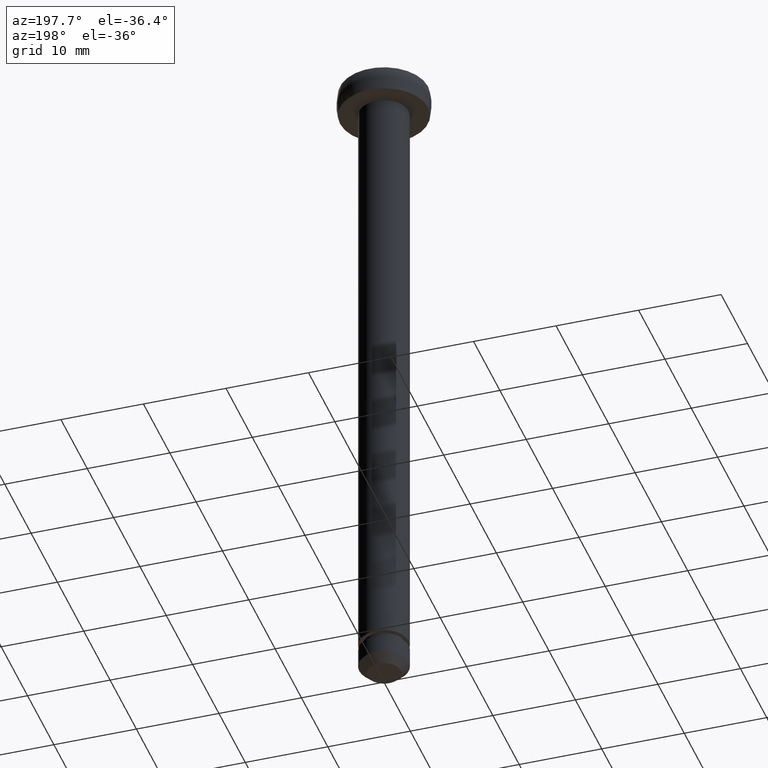
[diagram: clean part render]
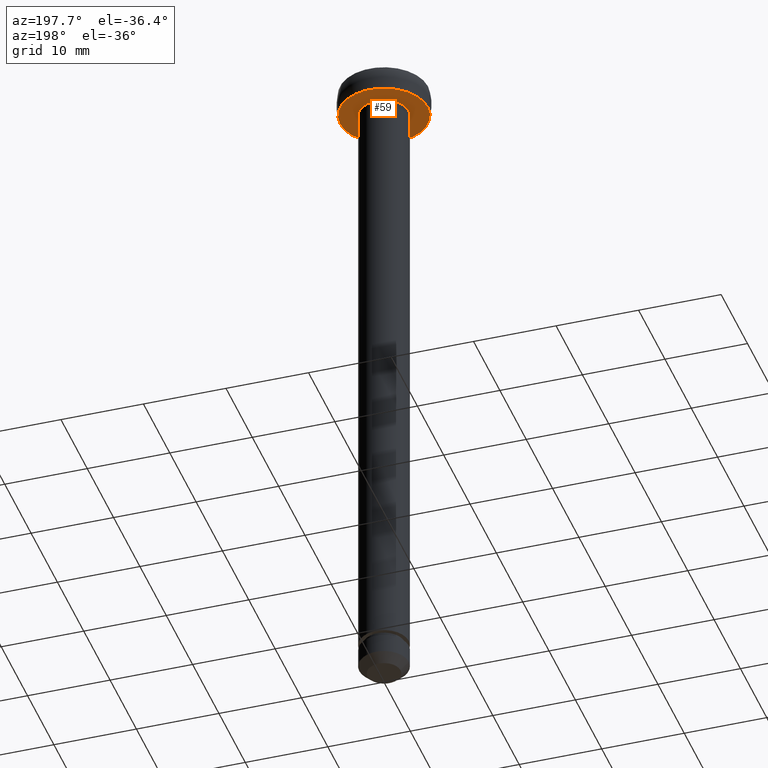
[diagram: same view with one face highlighted and labeled with its STEP entity id]
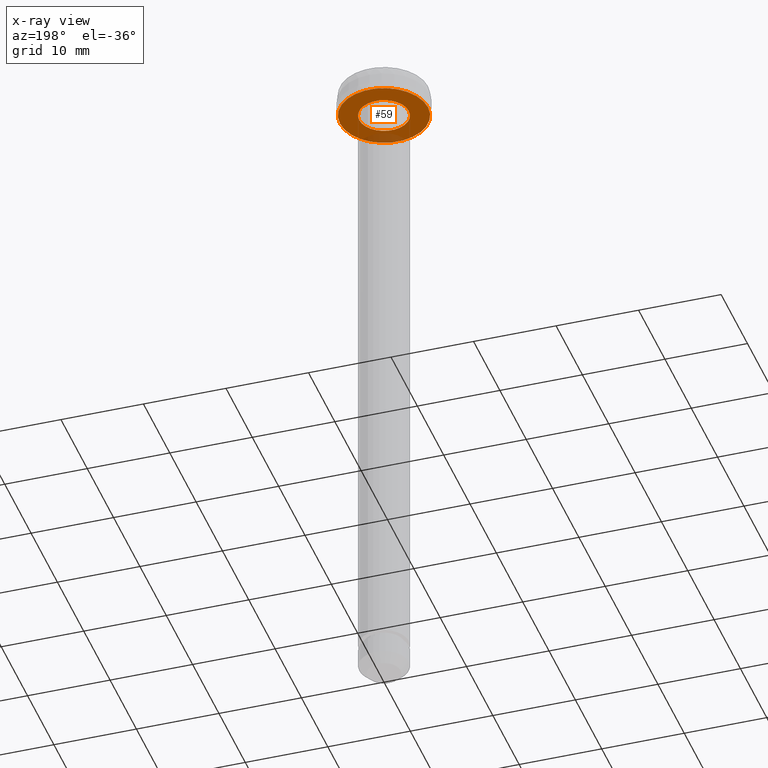
[diagram: x-ray of the same camera — body ghosted, the highlighted face saturated]
A machine part, auxiliary view. The second image highlights one B-rep face of the part: STEP entity #59.
The next image is the same camera in x-ray: the body ghosted, the highlighted face saturated — about 10% of this face is hidden behind the body in this view.
In plain terms, the highlighted planar face has unit normal (0, 0, -1).
Its self-contained STEP definition (entity closure, byte-faithful):
#19 = DIRECTION ( 'NONE',  ( 0.0000000000000000000, 0.0000000000000000000, -1.000000000000000000 ) ) ;
#27 = CARTESIAN_POINT ( 'NONE',  ( 0.0000000000000000000, 0.0000000000000000000, 79.99999998195649200 ) ) ;
#33 = CARTESIAN_POINT ( 'NONE',  ( 5.328427118366795100, 6.525441214997858000E-016, 79.99999998195649200 ) ) ;
#36 = DIRECTION ( 'NONE',  ( 0.0000000000000000000, 0.0000000000000000000, -1.000000000000000000 ) ) ;
#43 = DIRECTION ( 'NONE',  ( -1.000000000000000000, 0.0000000000000000000, -0.0000000000000000000 ) ) ;
#59 = ADVANCED_FACE ( 'NONE', ( #165, #453 ), #265, .T. ) ;
#60 = DIRECTION ( 'NONE',  ( 0.0000000000000000000, 0.0000000000000000000, -1.000000000000000000 ) ) ;
#61 = CIRCLE ( 'NONE', #143, 3.000000000000000000 ) ;
#73 = VERTEX_POINT ( 'NONE', #346 ) ;
#80 = CIRCLE ( 'NONE', #337, 5.328427118366795100 ) ;
#86 = CARTESIAN_POINT ( 'NONE',  ( 3.000000000000000000, 0.0000000000000000000, 79.99999998195649200 ) ) ;
#118 = EDGE_LOOP ( 'NONE', ( #170, #432 ) ) ;
#126 = EDGE_LOOP ( 'NONE', ( #219, #130 ) ) ;
#129 = EDGE_CURVE ( 'NONE', #73, #270, #80, .T. ) ;
#130 = ORIENTED_EDGE ( 'NONE', *, *, #350, .T. ) ;
#142 = DIRECTION ( 'NONE',  ( 0.0000000000000000000, 0.0000000000000000000, -1.000000000000000000 ) ) ;
#143 = AXIS2_PLACEMENT_3D ( 'NONE', #169, #142, #180 ) ;
#144 = VERTEX_POINT ( 'NONE', #420 ) ;
#161 = CIRCLE ( 'NONE', #422, 5.328427118366795100 ) ;
#165 = FACE_OUTER_BOUND ( 'NONE', #126, .T. ) ;
#169 = CARTESIAN_POINT ( 'NONE',  ( 0.0000000000000000000, 0.0000000000000000000, 79.99999998195649200 ) ) ;
#170 = ORIENTED_EDGE ( 'NONE', *, *, #314, .F. ) ;
#180 = DIRECTION ( 'NONE',  ( -1.000000000000000000, 0.0000000000000000000, 0.0000000000000000000 ) ) ;
#182 = DIRECTION ( 'NONE',  ( -1.000000000000000000, 0.0000000000000000000, 0.0000000000000000000 ) ) ;
#208 = AXIS2_PLACEMENT_3D ( 'NONE', #86, #60, #43 ) ;
#211 = DIRECTION ( 'NONE',  ( -1.000000000000000000, 0.0000000000000000000, 0.0000000000000000000 ) ) ;
#219 = ORIENTED_EDGE ( 'NONE', *, *, #129, .T. ) ;
#225 = DIRECTION ( 'NONE',  ( -1.000000000000000000, 0.0000000000000000000, 0.0000000000000000000 ) ) ;
#248 = EDGE_CURVE ( 'NONE', #144, #332, #61, .T. ) ;
#265 = PLANE ( 'NONE',  #208 ) ;
#270 = VERTEX_POINT ( 'NONE', #33 ) ;
#314 = EDGE_CURVE ( 'NONE', #332, #144, #369, .T. ) ;
#318 = CARTESIAN_POINT ( 'NONE',  ( 0.0000000000000000000, 0.0000000000000000000, 79.99999998195649200 ) ) ;
#326 = CARTESIAN_POINT ( 'NONE',  ( 0.0000000000000000000, 0.0000000000000000000, 79.99999998195649200 ) ) ;
#332 = VERTEX_POINT ( 'NONE', #373 ) ;
#337 = AXIS2_PLACEMENT_3D ( 'NONE', #318, #36, #225 ) ;
#346 = CARTESIAN_POINT ( 'NONE',  ( -5.328427118366795100, 0.0000000000000000000, 79.99999998195649200 ) ) ;
#349 = AXIS2_PLACEMENT_3D ( 'NONE', #326, #19, #211 ) ;
#350 = EDGE_CURVE ( 'NONE', #270, #73, #161, .T. ) ;
#369 = CIRCLE ( 'NONE', #349, 3.000000000000000000 ) ;
#373 = CARTESIAN_POINT ( 'NONE',  ( -3.000000000000000000, 0.0000000000000000000, 79.99999998195649200 ) ) ;
#384 = DIRECTION ( 'NONE',  ( 0.0000000000000000000, 0.0000000000000000000, -1.000000000000000000 ) ) ;
#420 = CARTESIAN_POINT ( 'NONE',  ( 3.000000000000000000, 3.673940397442059900E-016, 79.99999998195649200 ) ) ;
#422 = AXIS2_PLACEMENT_3D ( 'NONE', #27, #384, #182 ) ;
#432 = ORIENTED_EDGE ( 'NONE', *, *, #248, .F. ) ;
#453 = FACE_BOUND ( 'NONE', #118, .T. ) ;